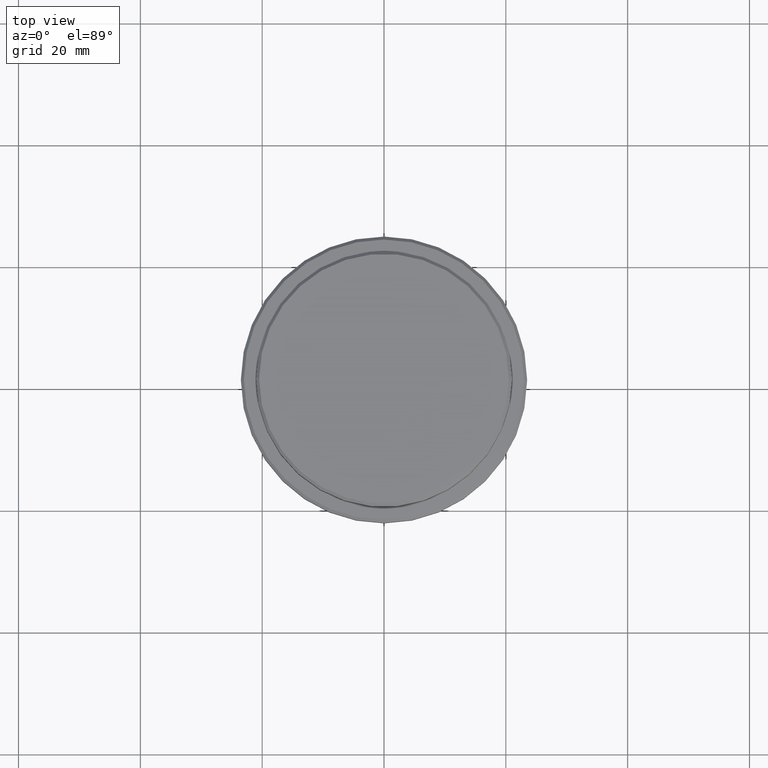
[diagram: clean part render]
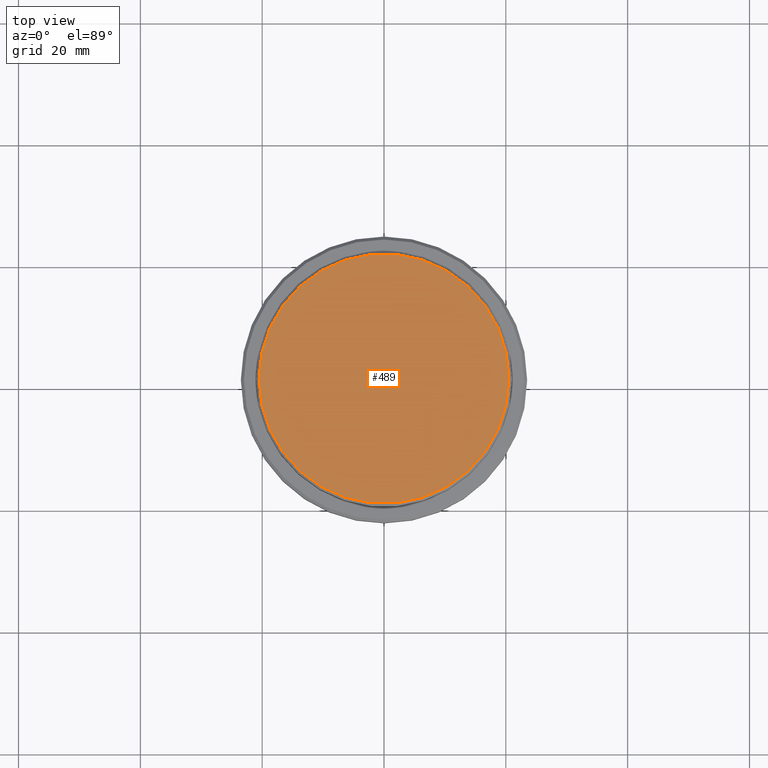
[diagram: same view with one face highlighted and labeled with its STEP entity id]
A machine part, top view. The second image highlights one B-rep face of the part: STEP entity #489.
In plain terms, the highlighted planar face has unit normal (0, -0, 1).
Its self-contained STEP definition (entity closure, byte-faithful):
#29 = AXIS2_PLACEMENT_3D ( 'NONE', #96, #505, #1296 ) ;
#30 = VERTEX_POINT ( 'NONE', #1131 ) ;
#71 = DIRECTION ( 'NONE',  ( -0.000000000000000000, -0.000000000000000000, 1.000000000000000000 ) ) ;
#96 = CARTESIAN_POINT ( 'NONE',  ( 0.000000000000000000, 0.000000000000000000, 0.000000000000000000 ) ) ;
#99 = CIRCLE ( 'NONE', #29, 20.50000000000000355 ) ;
#294 = EDGE_CURVE ( 'NONE', #1084, #30, #980, .T. ) ;
#367 = AXIS2_PLACEMENT_3D ( 'NONE', #1393, #71, #409 ) ;
#402 = PLANE ( 'NONE',  #1138 ) ;
#409 = DIRECTION ( 'NONE',  ( 1.000000000000000000, 0.000000000000000000, 0.000000000000000000 ) ) ;
#411 = CARTESIAN_POINT ( 'NONE',  ( -20.50000000000000355, 0.000000000000000000, 0.000000000000000000 ) ) ;
#489 = ADVANCED_FACE ( 'NONE', ( #1386 ), #402, .T. ) ;
#505 = DIRECTION ( 'NONE',  ( -0.000000000000000000, -0.000000000000000000, 1.000000000000000000 ) ) ;
#523 = EDGE_CURVE ( 'NONE', #30, #1084, #99, .T. ) ;
#619 = DIRECTION ( 'NONE',  ( 1.000000000000000000, 0.000000000000000000, 0.000000000000000000 ) ) ;
#661 = EDGE_LOOP ( 'NONE', ( #1108, #994 ) ) ;
#980 = CIRCLE ( 'NONE', #367, 20.50000000000000355 ) ;
#994 = ORIENTED_EDGE ( 'NONE', *, *, #523, .T. ) ;
#1084 = VERTEX_POINT ( 'NONE', #411 ) ;
#1108 = ORIENTED_EDGE ( 'NONE', *, *, #294, .T. ) ;
#1131 = CARTESIAN_POINT ( 'NONE',  ( 20.50000000000000355, 2.541142108230758269E-15, 0.000000000000000000 ) ) ;
#1138 = AXIS2_PLACEMENT_3D ( 'NONE', #1392, #1277, #619 ) ;
#1277 = DIRECTION ( 'NONE',  ( 0.000000000000000000, -0.000000000000000000, 1.000000000000000000 ) ) ;
#1296 = DIRECTION ( 'NONE',  ( 1.000000000000000000, 0.000000000000000000, 0.000000000000000000 ) ) ;
#1386 = FACE_OUTER_BOUND ( 'NONE', #661, .T. ) ;
#1392 = CARTESIAN_POINT ( 'NONE',  ( 0.000000000000000000, 0.000000000000000000, 0.000000000000000000 ) ) ;
#1393 = CARTESIAN_POINT ( 'NONE',  ( 0.000000000000000000, 0.000000000000000000, 0.000000000000000000 ) ) ;